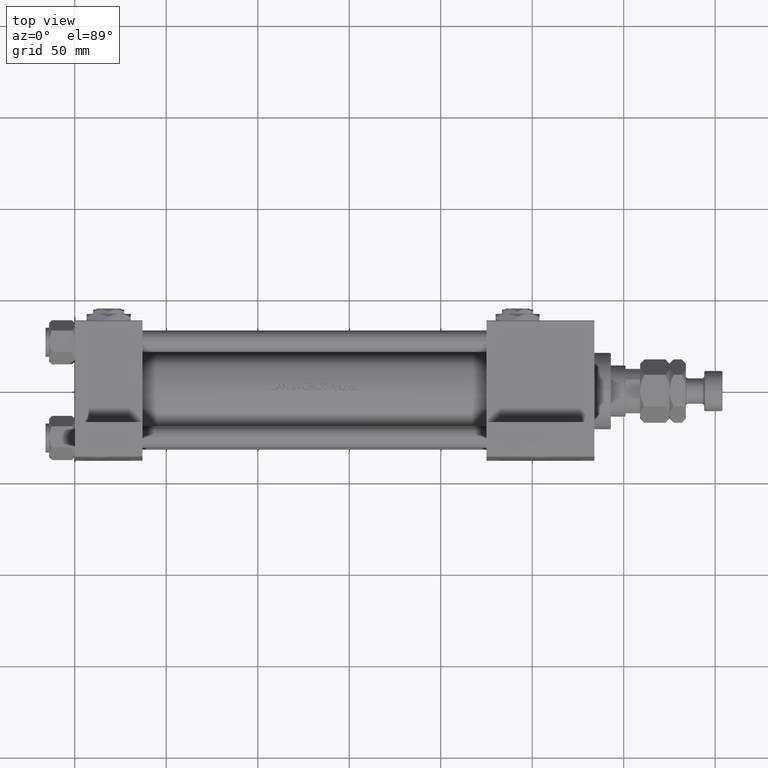
[diagram: clean part render]
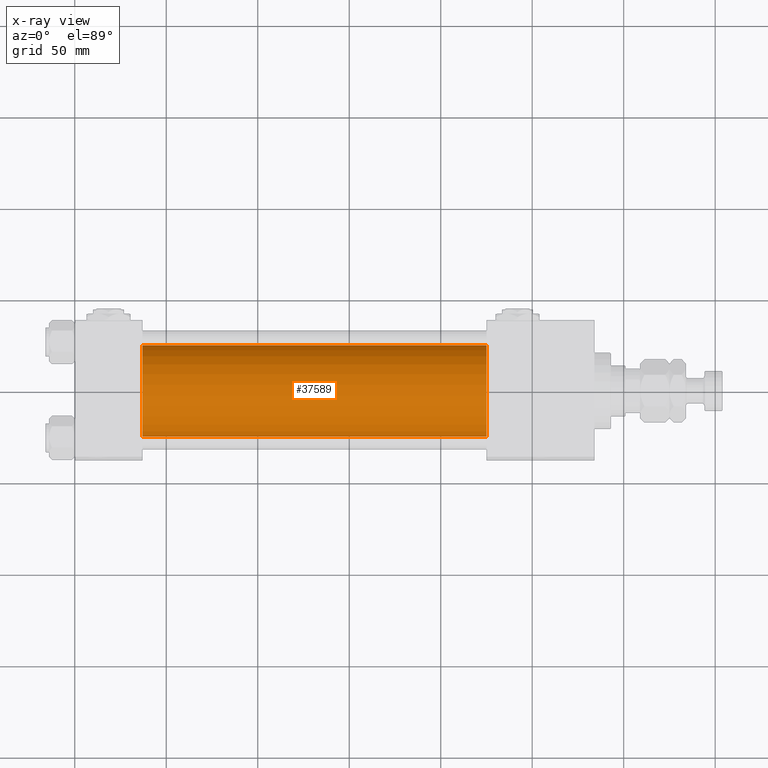
[diagram: x-ray — body ghosted, one internal face saturated and labeled with its STEP entity id]
A machine part, top view, then the same camera in x-ray: the body is ghosted and one INTERNAL B-rep face — a face not visible from any outside direction — is saturated and labeled: STEP entity #37589.
In plain terms, the highlighted cylindrical surface (partial cylindrical patch) has radius 25 mm, axis along (-1, -0, 0).
Its self-contained STEP definition (entity closure, byte-faithful):
#1191 = DIRECTION ( 'NONE',  ( 0.000000000000000000, 0.000000000000000000, -1.000000000000000000 ) ) ;
#1586 = CARTESIAN_POINT ( 'NONE',  ( 225.0000000000000000, 0.000000000000000000, -0.5000000000000004441 ) ) ;
#3791 = ORIENTED_EDGE ( 'NONE', *, *, #42795, .T. ) ;
#6506 = EDGE_LOOP ( 'NONE', ( #3791, #9629, #14060, #10017 ) ) ;
#7193 = CARTESIAN_POINT ( 'NONE',  ( 225.0000000000000000, 3.061616997868383043E-15, -25.50000000000000355 ) ) ;
#9100 = AXIS2_PLACEMENT_3D ( 'NONE', #44093, #15894, #43583 ) ;
#9629 = ORIENTED_EDGE ( 'NONE', *, *, #18208, .T. ) ;
#9732 = VERTEX_POINT ( 'NONE', #27939 ) ;
#10017 = ORIENTED_EDGE ( 'NONE', *, *, #15521, .F. ) ;
#10470 = VECTOR ( 'NONE', #12464, 1000.000000000000000 ) ;
#12464 = DIRECTION ( 'NONE',  ( -1.000000000000000000, -0.000000000000000000, -0.000000000000000000 ) ) ;
#13938 = VERTEX_POINT ( 'NONE', #24088 ) ;
#14060 = ORIENTED_EDGE ( 'NONE', *, *, #27851, .F. ) ;
#14208 = VERTEX_POINT ( 'NONE', #37287 ) ;
#14513 = VERTEX_POINT ( 'NONE', #33120 ) ;
#15521 = EDGE_CURVE ( 'NONE', #13938, #14513, #38873, .T. ) ;
#15894 = DIRECTION ( 'NONE',  ( 1.000000000000000000, 0.000000000000000000, 0.000000000000000000 ) ) ;
#16947 = CYLINDRICAL_SURFACE ( 'NONE', #43691, 25.00000000000000000 ) ;
#17198 = DIRECTION ( 'NONE',  ( -1.000000000000000000, -0.000000000000000000, -0.000000000000000000 ) ) ;
#18208 = EDGE_CURVE ( 'NONE', #9732, #14208, #30490, .T. ) ;
#24088 = CARTESIAN_POINT ( 'NONE',  ( 225.0000000000000000, 0.000000000000000000, 24.50000000000000000 ) ) ;
#27851 = EDGE_CURVE ( 'NONE', #14513, #14208, #31173, .T. ) ;
#27939 = CARTESIAN_POINT ( 'NONE',  ( 225.0000000000000000, 3.061616997868383043E-15, -25.50000000000000355 ) ) ;
#28272 = AXIS2_PLACEMENT_3D ( 'NONE', #36286, #35781, #1191 ) ;
#28969 = FACE_OUTER_BOUND ( 'NONE', #6506, .T. ) ;
#29227 = DIRECTION ( 'NONE',  ( 0.000000000000000000, 0.000000000000000000, 1.000000000000000000 ) ) ;
#30490 = LINE ( 'NONE', #7193, #35073 ) ;
#31173 = CIRCLE ( 'NONE', #9100, 25.00000000000000000 ) ;
#33120 = CARTESIAN_POINT ( 'NONE',  ( 37.00000000000000000, 0.000000000000000000, 24.50000000000000000 ) ) ;
#35031 = CARTESIAN_POINT ( 'NONE',  ( 225.0000000000000000, 0.000000000000000000, 24.50000000000000000 ) ) ;
#35073 = VECTOR ( 'NONE', #41548, 1000.000000000000000 ) ;
#35781 = DIRECTION ( 'NONE',  ( 1.000000000000000000, 0.000000000000000000, 0.000000000000000000 ) ) ;
#36286 = CARTESIAN_POINT ( 'NONE',  ( 225.0000000000000000, 0.000000000000000000, -0.5000000000000004441 ) ) ;
#37287 = CARTESIAN_POINT ( 'NONE',  ( 37.00000000000000000, 3.061616997868383043E-15, -25.50000000000000355 ) ) ;
#37589 = ADVANCED_FACE ( 'NONE', ( #28969 ), #16947, .F. ) ;
#38873 = LINE ( 'NONE', #35031, #10470 ) ;
#41548 = DIRECTION ( 'NONE',  ( -1.000000000000000000, -0.000000000000000000, -0.000000000000000000 ) ) ;
#42795 = EDGE_CURVE ( 'NONE', #13938, #9732, #50421, .T. ) ;
#43583 = DIRECTION ( 'NONE',  ( 0.000000000000000000, 0.000000000000000000, -1.000000000000000000 ) ) ;
#43691 = AXIS2_PLACEMENT_3D ( 'NONE', #1586, #17198, #29227 ) ;
#44093 = CARTESIAN_POINT ( 'NONE',  ( 37.00000000000000000, 0.000000000000000000, -0.5000000000000004441 ) ) ;
#50421 = CIRCLE ( 'NONE', #28272, 25.00000000000000000 ) ;